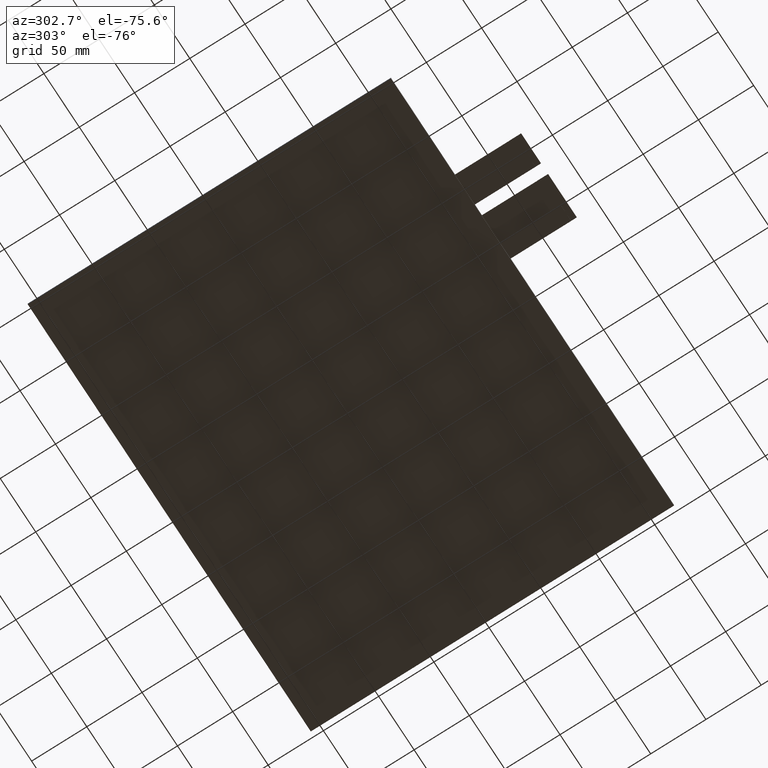
[diagram: clean part render]
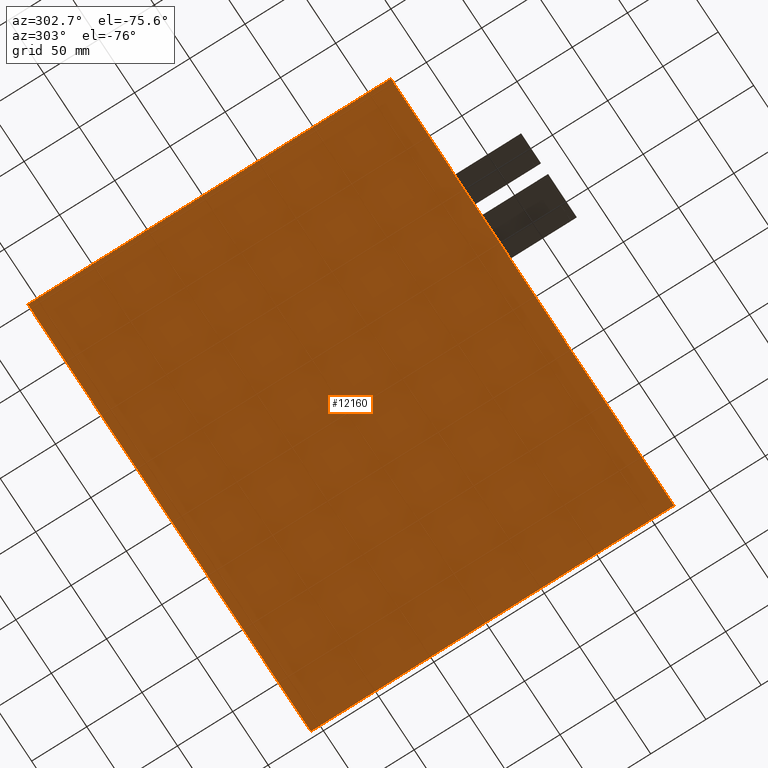
[diagram: same view with one face highlighted and labeled with its STEP entity id]
A machine part, auxiliary view. The second image highlights one B-rep face of the part: STEP entity #12160.
In plain terms, the highlighted planar face has unit normal (0, 0, -1).
Its self-contained STEP definition (entity closure, byte-faithful):
#702=PLANE('',#12766);
#1280=FACE_OUTER_BOUND('',#1862,.T.);
#1862=EDGE_LOOP('',(#11575,#11576,#11577,#11578));
#3564=LINE('',#19074,#5272);
#3566=LINE('',#19078,#5274);
#3568=LINE('',#19082,#5276);
#3570=LINE('',#19085,#5278);
#5272=VECTOR('',#15632,10.);
#5274=VECTOR('',#15636,10.);
#5276=VECTOR('',#15640,10.);
#5278=VECTOR('',#15644,10.);
#6427=VERTEX_POINT('',#19071);
#6428=VERTEX_POINT('',#19073);
#6429=VERTEX_POINT('',#19077);
#6430=VERTEX_POINT('',#19081);
#8140=EDGE_CURVE('',#6428,#6427,#3564,.T.);
#8142=EDGE_CURVE('',#6429,#6428,#3566,.T.);
#8144=EDGE_CURVE('',#6430,#6429,#3568,.T.);
#8146=EDGE_CURVE('',#6427,#6430,#3570,.T.);
#11575=ORIENTED_EDGE('',*,*,#8146,.T.);
#11576=ORIENTED_EDGE('',*,*,#8144,.T.);
#11577=ORIENTED_EDGE('',*,*,#8142,.T.);
#11578=ORIENTED_EDGE('',*,*,#8140,.T.);
#12160=ADVANCED_FACE('',(#1280),#702,.T.);
#12766=AXIS2_PLACEMENT_3D('',#19087,#15647,#15648);
#15632=DIRECTION('',(-3.24152707919754E-16,1.,0.));
#15636=DIRECTION('',(-1.,0.,0.));
#15640=DIRECTION('',(0.,-1.,0.));
#15644=DIRECTION('',(1.,0.,0.));
#15647=DIRECTION('center_axis',(0.,0.,-1.));
#15648=DIRECTION('ref_axis',(-1.,0.,0.));
#19071=CARTESIAN_POINT('',(-202.1,159.55,-2.35));
#19073=CARTESIAN_POINT('',(-202.1,-169.25,-2.35));
#19074=CARTESIAN_POINT('',(-202.1,159.55,-2.35));
#19077=CARTESIAN_POINT('',(197.1,-169.25,-2.35));
#19078=CARTESIAN_POINT('',(-202.1,-169.25,-2.35));
#19081=CARTESIAN_POINT('',(197.1,159.55,-2.35));
#19082=CARTESIAN_POINT('',(197.1,-169.25,-2.35));
#19085=CARTESIAN_POINT('',(197.1,159.55,-2.35));
#19087=CARTESIAN_POINT('Origin',(-2.50000000000004,-4.84999999999999,-2.35));